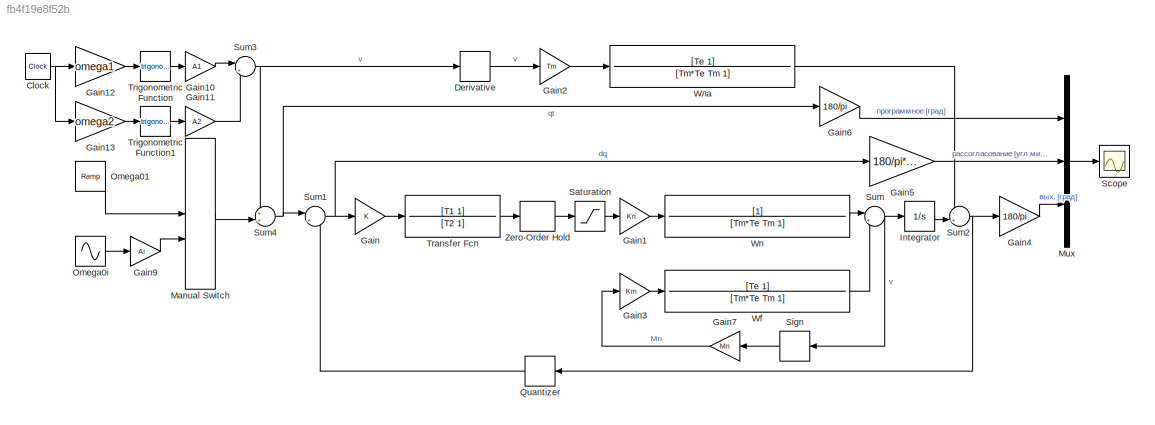
MODEL slx_fb4f19e8f52b
KIND model
CONFIG AbsTol = auto
CONFIG EnableMultiTasking = off
CONFIG FixedStep = auto
CONFIG MaxStep = auto
CONFIG MinStep = auto
CONFIG RelTol = 1e-3
CONFIG SampleTimeConstraint = Unconstrained
CONFIG Solver = VariableStepAuto
CONFIG SolverName = VariableStepAuto
CONFIG StartTime = 0.0
CONFIG StopTime = 7
WORKSPACE source: mxarray member
WORKSPACE A01 = 0.209333333333
WORKSPACE A1 = 0.035
WORKSPACE A2 = 0.21
WORKSPACE Ai = 0.348888888889
WORKSPACE Fi = 3.14
WORKSPACE K = 4000
WORKSPACE Km = 3.29
WORKSPACE Kn = 3.7
WORKSPACE Mn = 0.08
WORKSPACE T1 = 0.05
WORKSPACE T2 = 0.0005
WORKSPACE Te = 0.0001
WORKSPACE Tm = 1.08
WORKSPACE Tpwm = 6.25e-05
WORKSPACE U = 100
WORKSPACE dangle = 0.000383
WORKSPACE omega1 = 6.28
WORKSPACE omega2 = 1.005
WORKSPACE target = 3.14
BLOCK [Clock] Clock
BLOCK [Derivative] Derivative
BLOCK [Gain] Gain
  Gain = K
BLOCK [Gain] Gain1
  Gain = Kn
BLOCK [Gain] Gain10
  Gain = A1
BLOCK [Gain] Gain11
  Gain = A2
BLOCK [Gain] Gain12
  Gain = omega1
BLOCK [Gain] Gain13
  Gain = omega2
BLOCK [Gain] Gain2
  Gain = Tm
BLOCK [Gain] Gain3
  Gain = Km
BLOCK [Gain] Gain4
  Gain = 180/pi
BLOCK [Gain] Gain5
  Gain = 180/pi*600
BLOCK [Gain] Gain6
  Gain = 180/pi
BLOCK [Gain] Gain7
  Gain = Mn
  NameLocation = top
BLOCK [Gain] Gain9
  Gain = Ai
BLOCK [Integrator] Integrator
  Ports = [1, 1]
BLOCK [ManualSwitch] Manual Switch
BLOCK [Mux] Mux
  DisplayOption = bar
  Inputs = 3
  Ports = [3, 1]
BLOCK [Reference] Omega01  REF=simulink/Sources/Ramp
  Ports = [0, 1]
  SourceBlock = simulink/Sources/Ramp
  SourceProductBaseCode = SL
  SourceType = Ramp
BLOCK [Sin] Omega0i
  Frequency = Fi
  Ports = [0, 1]
  SampleTime = 0
BLOCK [Quantizer] Quantizer
  QuantizationInterval = dangle
BLOCK [Saturate] Saturation
  LowerLimit = -U
  UpperLimit = U
BLOCK [Scope] Scope
  Floating = off
  NumInputPorts = 1
  Ports = [1]
  ScopeSpecificationString = Simulink.scopes.TimeScopeBlockCfg('CurrentConfiguration', extmgr.ConfigurationSet(extmgr.Configuration('Core','General UI',true,'FigureColor',[1 1 1]),extmgr.Configuration('Core','Source UI',true),extmgr.Configuration('Sources','WiredSimulink',true),extmgr.Configuration('Visuals','Time Domain',true,'SerializedDisplays',{struct('MinYLimReal','-25.80906','MaxYLimReal','59.509','YLabelReal','','MinYL...<+1951ch>
BLOCK [Signum] Sign
  NameLocation = top
  ZeroCross = off
BLOCK [Sum] Sum
  Inputs = |+-
  Ports = [2, 1]
BLOCK [Sum] Sum1
  Inputs = |+-
  Ports = [2, 1]
BLOCK [Sum] Sum2
  Inputs = -+|
  Ports = [2, 1]
BLOCK [Sum] Sum3
  Inputs = |++
  Ports = [2, 1]
BLOCK [Sum] Sum4
  Inputs = ++|
  Ports = [2, 1]
BLOCK [TransferFcn] Transfer Fcn
  Denominator = [T2 1]
  Numerator = [T1 1]
BLOCK [Trigonometry] Trigonometric Function
  Ports = [1, 1]
BLOCK [Trigonometry] Trigonometric Function1
  Ports = [1, 1]
BLOCK [TransferFcn] Wf
  Denominator = [Tm*Te Tm 1]
  Numerator = [Te 1]
BLOCK [TransferFcn] Wn 
  Denominator = [Tm*Te Tm 1]
BLOCK [TransferFcn] Wла
  Denominator = [Tm*Te Tm 1]
  Numerator = [Te 1]
BLOCK [ZeroOrderHold] Zero-Order Hold
  SampleTime = Tpwm
NET Clock:1 -> Gain12:1, Gain13:1
LINE Derivative:1 -> Gain2:1
LINE Gain10:1 -> Sum3:1
LINE Gain11:1 -> Sum3:2
LINE Gain12:1 -> Trigonometric Function:1
LINE Gain13:1 -> Trigonometric Function1:1
LINE Gain1:1 -> Wn :1
LINE Gain2:1 -> Wла:1
LINE Gain3:1 -> Wf:1
LINE Gain4:1 -> Mux:3
LINE Gain5:1 -> Mux:2
LINE Gain6:1 -> Mux:1
LINE Gain7:1 -> Gain3:1
LINE Gain9:1 -> Manual Switch:2
LINE Gain:1 -> Transfer Fcn:1
LINE Integrator:1 -> Sum2:2
LINE Manual Switch:1 -> Sum4:2
LINE Mux:1 -> Scope:1
LINE Omega01:1 -> Manual Switch:1
LINE Omega0i:1 -> Gain9:1
LINE Quantizer:1 -> Sum1:2
LINE Saturation:1 -> Gain1:1
LINE Sign:1 -> Gain7:1
NET Sum1:1 -> Gain5:1, Gain:1
NET Sum2:1 -> Gain4:1, Quantizer:1
NET Sum3:1 -> Derivative:1, Sum4:1
NET Sum4:1 -> Gain6:1, Sum1:1
NET Sum:1 -> Integrator:1, Sign:1
LINE Transfer Fcn:1 -> Zero-Order Hold:1
LINE Trigonometric Function1:1 -> Gain11:1
LINE Trigonometric Function:1 -> Gain10:1
LINE Wf:1 -> Sum:2
LINE Wn :1 -> Sum:1
LINE Wла:1 -> Sum2:1
LINE Zero-Order Hold:1 -> Saturation:1
note: NET lines group one-source signal fan-out (src -> all destinations, sorted); 1:1 wires keep LINE
